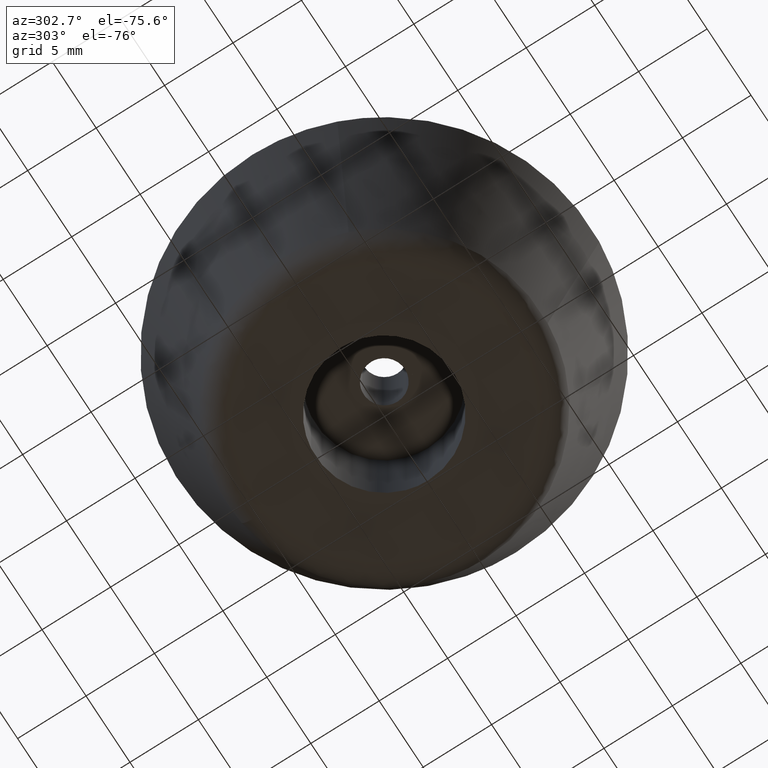
[diagram: clean part render]
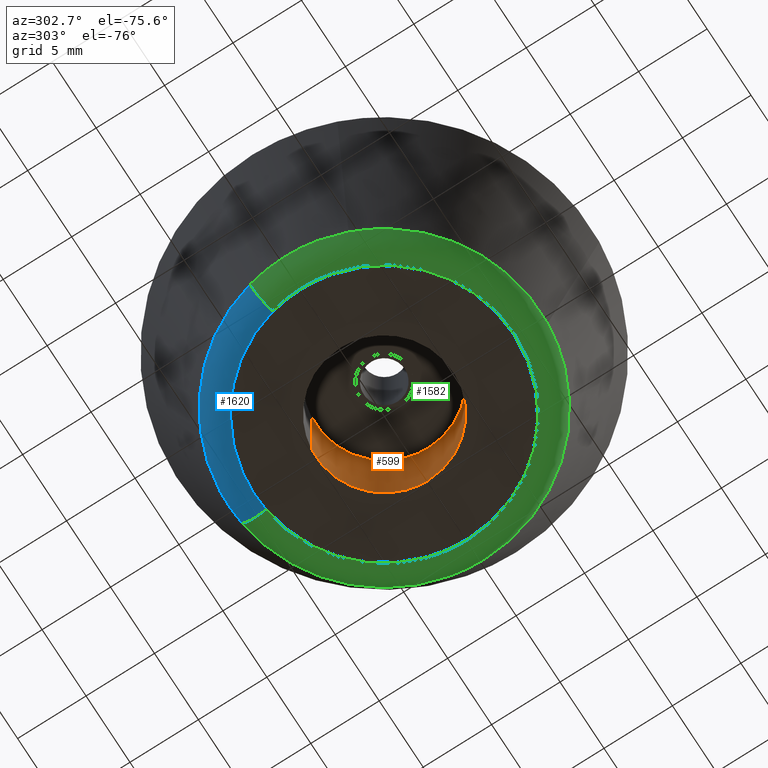
[diagram: same view with three faces highlighted in distinct colors, each labeled with its STEP entity id]
A machine part, auxiliary view with three faces highlighted in distinct colors.
Their STEP definitions:

[orange] entity #599 — the highlighted face is a freeform B-spline surface patch.
#497=CARTESIAN_POINT('',(-0.590171173283792,4.965047631818332,8.199999999999898));
#498=CARTESIAN_POINT('',(-0.448073643189888,4.981938077243028,8.199999999999898));
#499=CARTESIAN_POINT('',(-0.305242697674285,4.990673992109334,8.199999999999898));
#500=CARTESIAN_POINT('',(4.685431294435048,5.295916689783620,8.199999999999898));
#501=CARTESIAN_POINT('',(4.990673992109334,0.305242697674285,8.199999999999898));
#502=CARTESIAN_POINT('',(5.295916689783620,-4.685431294435048,8.199999999999898));
#503=CARTESIAN_POINT('',(0.305242697674285,-4.990673992109334,8.199999999999898));
#504=CARTESIAN_POINT('',(-0.590171173283792,4.965047631818332,-0.204999999999997));
#505=CARTESIAN_POINT('',(-0.448073643189888,4.981938077243028,-0.204999999999997));
#506=CARTESIAN_POINT('',(-0.305242697674285,4.990673992109334,-0.204999999999997));
#507=CARTESIAN_POINT('',(4.685431294435048,5.295916689783620,-0.204999999999997));
#508=CARTESIAN_POINT('',(4.990673992109334,0.305242697674285,-0.204999999999997));
#509=CARTESIAN_POINT('',(5.295916689783620,-4.685431294435048,-0.204999999999997));
#510=CARTESIAN_POINT('',(0.305242697674285,-4.990673992109334,-0.204999999999997));
#518=(BOUNDED_SURFACE()B_SPLINE_SURFACE(2,1,((#497,#504),(#498,#505),(#499,#506),(#500,#507),(#501,#508),(#502,#509),(#503,#510)),.UNSPECIFIED.,.F.,.F.,.U.)B_SPLINE_SURFACE_WITH_KNOTS((3,2,2,3),(2,2),(0.0,0.331370849898476,8.615642097360375,16.899913344822270),(0.0,8.404999999999896),.UNSPECIFIED.)GEOMETRIC_REPRESENTATION_ITEM()RATIONAL_B_SPLINE_SURFACE(((0.977505800795127,0.977505800795127),(0.988284271247462,0.988284271247462),(1.0,1.0),(0.707106781186548,0.707106781186548),(1.0,1.0),(0.707106781186548,0.707106781186548),(1.0,1.0)))REPRESENTATION_ITEM('')SURFACE());
#519=CARTESIAN_POINT('',(-0.590171173301907,4.965047631816178,5.820828E-016));
#520=VERTEX_POINT('',#519);
#521=CARTESIAN_POINT('',(5.0,0.0,0.0));
#522=VERTEX_POINT('',#521);
#523=CARTESIAN_POINT('',(-0.590171173301907,4.965047631816178,5.820828E-016));
#524=CARTESIAN_POINT('',(-0.296120598277857,5.0,0.0));
#525=CARTESIAN_POINT('',(0.0,5.0,0.0));
#526=CARTESIAN_POINT('',(5.000000000000001,5.000000000000001,0.0));
#527=CARTESIAN_POINT('',(5.0,0.0,0.0));
#535=(BOUNDED_CURVE()B_SPLINE_CURVE(2,(#523,#524,#525,#526,#527),.UNSPECIFIED.,.F.,.U.)B_SPLINE_CURVE_WITH_KNOTS((3,2,3),(0.229562473514411,0.250000000000000,0.500000000000000),.UNSPECIFIED.)CURVE()GEOMETRIC_REPRESENTATION_ITEM()RATIONAL_B_SPLINE_CURVE((0.956026754185469,0.976055948332203,1.0,0.707106781186548,1.0))REPRESENTATION_ITEM(''));
#536=EDGE_CURVE('',#520,#522,#535,.T.);
#537=ORIENTED_EDGE('',*,*,#536,.T.);
#538=CARTESIAN_POINT('',(0.305242697700494,-4.990673992107731,-3.469447E-016));
#539=VERTEX_POINT('',#538);
#540=CARTESIAN_POINT('',(5.0,0.0,0.0));
#541=CARTESIAN_POINT('',(4.999999999999999,-4.703530334478959,0.0));
#542=CARTESIAN_POINT('',(0.305242697700494,-4.990673992107731,-3.469447E-016));
#550=(BOUNDED_CURVE()B_SPLINE_CURVE(2,(#540,#541,#542),.UNSPECIFIED.,.F.,.U.)B_SPLINE_CURVE_WITH_KNOTS((3,3),(0.500000000000000,0.739332962240155),.UNSPECIFIED.)CURVE()GEOMETRIC_REPRESENTATION_ITEM()RATIONAL_B_SPLINE_CURVE((1.0,0.719603993285290,0.976072041669316))REPRESENTATION_ITEM(''));
#551=EDGE_CURVE('',#522,#539,#550,.T.);
#552=ORIENTED_EDGE('',*,*,#551,.T.);
#553=CARTESIAN_POINT('',(0.305242697700494,-4.990673992107731,7.999999999999900));
#554=VERTEX_POINT('',#553);
#555=CARTESIAN_POINT('',(0.305242697700494,-4.990673992107731,7.999999999999900));
#556=CARTESIAN_POINT('',(0.305242697700494,-4.990673992107731,-3.469447E-016));
#557=QUASI_UNIFORM_CURVE('',1,(#555,#556),.UNSPECIFIED.,.F.,.U.);
#558=EDGE_CURVE('',#554,#539,#557,.T.);
#559=ORIENTED_EDGE('',*,*,#558,.F.);
#560=CARTESIAN_POINT('',(5.0,0.0,7.999999999999900));
#561=VERTEX_POINT('',#560);
#562=CARTESIAN_POINT('',(5.0,0.0,7.999999999999900));
#563=CARTESIAN_POINT('',(4.999999999999999,-4.703530334478959,7.999999999999899));
#564=CARTESIAN_POINT('',(0.305242697700494,-4.990673992107731,7.999999999999900));
#572=(BOUNDED_CURVE()B_SPLINE_CURVE(2,(#562,#563,#564),.UNSPECIFIED.,.F.,.U.)B_SPLINE_CURVE_WITH_KNOTS((3,3),(0.500000000000000,0.739332962240155),.UNSPECIFIED.)CURVE()GEOMETRIC_REPRESENTATION_ITEM()RATIONAL_B_SPLINE_CURVE((1.0,0.719603993285290,0.976072041669316))REPRESENTATION_ITEM(''));
#573=EDGE_CURVE('',#561,#554,#572,.T.);
#574=ORIENTED_EDGE('',*,*,#573,.F.);
#575=CARTESIAN_POINT('',(-0.590161985997096,4.965048723849380,7.999999999999899));
#576=VERTEX_POINT('',#575);
#577=CARTESIAN_POINT('',(-0.590161985997096,4.965048723849380,7.999999999999899));
#578=CARTESIAN_POINT('',(-0.296115956054067,5.0,7.999999999999900));
#579=CARTESIAN_POINT('',(0.0,5.0,7.999999999999900));
#580=CARTESIAN_POINT('',(5.000000000000001,5.000000000000001,7.999999999999901));
#581=CARTESIAN_POINT('',(5.0,0.0,7.999999999999900));
#589=(BOUNDED_CURVE()B_SPLINE_CURVE(2,(#577,#578,#579,#580,#581),.UNSPECIFIED.,.F.,.U.)B_SPLINE_CURVE_WITH_KNOTS((3,2,3),(0.229562786238015,0.250000000000000,0.500000000000000),.UNSPECIFIED.)CURVE()GEOMETRIC_REPRESENTATION_ITEM()RATIONAL_B_SPLINE_CURVE((0.956027367137448,0.976056314710695,1.0,0.707106781186548,1.0))REPRESENTATION_ITEM(''));
#590=EDGE_CURVE('',#576,#561,#589,.T.);
#591=ORIENTED_EDGE('',*,*,#590,.F.);
#592=CARTESIAN_POINT('',(-0.590161985997096,4.965048723849380,7.999999999999899));
#593=CARTESIAN_POINT('',(-0.590171173301907,4.965047631816178,5.820828E-016));
#594=QUASI_UNIFORM_CURVE('',1,(#592,#593),.UNSPECIFIED.,.F.,.U.);
#595=EDGE_CURVE('',#576,#520,#594,.T.);
#596=ORIENTED_EDGE('',*,*,#595,.T.);
#597=EDGE_LOOP('',(#537,#552,#559,#574,#591,#596));
#598=FACE_OUTER_BOUND('',#597,.T.);
#599=ADVANCED_FACE('',(#598),#518,.F.);

[blue] entity #1620 — the highlighted face is a freeform B-spline surface patch.
#855=CARTESIAN_POINT('',(1.398603272956064,11.309763107930380,1.484675005030863));
#856=VERTEX_POINT('',#855);
#870=CARTESIAN_POINT('',(-11.072630677959060,2.695121990196576,1.484675005013568));
#871=VERTEX_POINT('',#870);
#872=CARTESIAN_POINT('',(-11.072630677959058,2.695121990196575,1.484675005013569));
#873=CARTESIAN_POINT('',(-8.954823839718012,11.395913000000000,1.484674999999897));
#874=CARTESIAN_POINT('',(0.0,11.395913000000000,1.484674999999896));
#875=CARTESIAN_POINT('',(0.701954927818329,11.395913000000004,1.484674999999896));
#876=CARTESIAN_POINT('',(1.398603272956064,11.309763107930380,1.484675005030863));
#884=(BOUNDED_CURVE()B_SPLINE_CURVE(2,(#872,#873,#874,#875,#876),.UNSPECIFIED.,.F.,.U.)B_SPLINE_CURVE_WITH_KNOTS((3,2,3),(0.040401677692741,0.250000000000000,0.271236031903497),.UNSPECIFIED.)CURVE()GEOMETRIC_REPRESENTATION_ITEM()RATIONAL_B_SPLINE_CURVE((0.920631806224459,0.754440290886110,1.0,0.975120441043839,0.954467626949581))REPRESENTATION_ITEM(''));
#885=EDGE_CURVE('',#871,#856,#884,.T.);
#1500=CARTESIAN_POINT('',(1.161434136675054,9.391902052839949,3.545680E-016));
#1501=VERTEX_POINT('',#1500);
#1517=CARTESIAN_POINT('',(1.398603272956064,11.309763107930376,1.484675005030863));
#1518=CARTESIAN_POINT('',(1.350013453387140,10.916843000138156,7.894668E-010));
#1519=CARTESIAN_POINT('',(1.161434136675054,9.391902052839949,3.545680E-016));
#1527=(BOUNDED_CURVE()B_SPLINE_CURVE(2,(#1517,#1518,#1519),.UNSPECIFIED.,.F.,.U.)B_SPLINE_CURVE_WITH_KNOTS((3,3),(-1.686134606863332,-0.303339817145263),.UNSPECIFIED.)CURVE()GEOMETRIC_REPRESENTATION_ITEM()RATIONAL_B_SPLINE_CURVE((0.858370364377691,0.681751507819132,0.861079767427219))REPRESENTATION_ITEM(''));
#1528=EDGE_CURVE('',#856,#1501,#1527,.T.);
#1535=CARTESIAN_POINT('',(-9.194981521801914,2.238094778029808,3.084375E-016));
#1536=VERTEX_POINT('',#1535);
#1537=CARTESIAN_POINT('',(-11.072630677959062,2.695121990196576,1.484675005013568));
#1538=CARTESIAN_POINT('',(-10.687948947775157,2.601488939443247,6.067662E-010));
#1539=CARTESIAN_POINT('',(-9.194981521801914,2.238094778029808,3.084375E-016));
#1547=(BOUNDED_CURVE()B_SPLINE_CURVE(2,(#1537,#1538,#1539),.UNSPECIFIED.,.F.,.U.)B_SPLINE_CURVE_WITH_KNOTS((3,3),(-1.686134606843051,-0.303339817010112),.UNSPECIFIED.)CURVE()GEOMETRIC_REPRESENTATION_ITEM()RATIONAL_B_SPLINE_CURVE((0.897045477047541,0.712468803595561,0.899876956194596))REPRESENTATION_ITEM(''));
#1548=EDGE_CURVE('',#871,#1536,#1547,.T.);
#1583=CARTESIAN_POINT('',(-11.099400183449898,2.701637793443051,1.602108768027597));
#1584=CARTESIAN_POINT('',(-8.693614149748445,12.585561540962241,1.602108768027596));
#1585=CARTESIAN_POINT('',(1.401984575833804,11.337105911494854,1.602108768027597));
#1586=CARTESIAN_POINT('',(-10.763511315822385,2.619881117930769,-0.100795717764828));
#1587=CARTESIAN_POINT('',(-8.430528923151822,12.204698616427503,-0.100795717764828));
#1588=CARTESIAN_POINT('',(1.359557867739233,10.994023618411738,-0.100795717764829));
#1589=CARTESIAN_POINT('',(-9.078216748610123,2.209673771532549,0.003613706161540));
#1590=CARTESIAN_POINT('',(-7.110520593525417,10.293750444478022,0.003613706161540));
#1591=CARTESIAN_POINT('',(1.146685374639005,9.272636634902352,0.003613706161540));
#1599=(BOUNDED_SURFACE()B_SPLINE_SURFACE(2,2,((#1583,#1586,#1589),(#1584,#1587,#1590),(#1585,#1588,#1591)),.UNSPECIFIED.,.F.,.F.,.U.)B_SPLINE_SURFACE_WITH_KNOTS((3,3),(3,3),(0.0,17.393754281439112),(0.0,2.989861379165938),.UNSPECIFIED.)GEOMETRIC_REPRESENTATION_ITEM()RATIONAL_B_SPLINE_SURFACE(((0.916412817856860,0.692960037778070,0.919527146809226),(0.669474605871578,0.506233805482072,0.671749742259146),(0.876902703939215,0.663083840610710,0.879882762081213)))REPRESENTATION_ITEM('')SURFACE());
#1600=CARTESIAN_POINT('',(-9.194981521801914,2.238094778029808,3.084375E-016));
#1601=CARTESIAN_POINT('',(-7.436303259014869,9.463443000000002,0.0));
#1602=CARTESIAN_POINT('',(0.0,9.463443000000000,0.0));
#1603=CARTESIAN_POINT('',(0.582920424967703,9.463443000000002,0.0));
#1604=CARTESIAN_POINT('',(1.161434136675053,9.391902052839949,3.545680E-016));
#1612=(BOUNDED_CURVE()B_SPLINE_CURVE(2,(#1600,#1601,#1602,#1603,#1604),.UNSPECIFIED.,.F.,.U.)B_SPLINE_CURVE_WITH_KNOTS((3,2,3),(0.040401677694351,0.250000000000000,0.271236031906231),.UNSPECIFIED.)CURVE()GEOMETRIC_REPRESENTATION_ITEM()RATIONAL_B_SPLINE_CURVE((0.920631806221906,0.754440290887996,1.0,0.975120441040636,0.954467626944263))REPRESENTATION_ITEM(''));
#1613=EDGE_CURVE('',#1536,#1501,#1612,.T.);
#1614=ORIENTED_EDGE('',*,*,#1613,.F.);
#1615=ORIENTED_EDGE('',*,*,#1548,.F.);
#1616=ORIENTED_EDGE('',*,*,#885,.T.);
#1617=ORIENTED_EDGE('',*,*,#1528,.T.);
#1618=EDGE_LOOP('',(#1614,#1615,#1616,#1617));
#1619=FACE_OUTER_BOUND('',#1618,.T.);
#1620=ADVANCED_FACE('',(#1619),#1599,.T.);

[green] entity #1582 — the highlighted face is a freeform B-spline surface patch.
#701=CARTESIAN_POINT('',(0.894102223881726,-11.360782142834809,1.484667856032542));
#702=VERTEX_POINT('',#701);
#703=CARTESIAN_POINT('',(-10.596654389991979,-4.192578432100836,1.484669252332252));
#704=VERTEX_POINT('',#703);
#705=CARTESIAN_POINT('',(0.894102223881726,-11.360782142834802,1.484667856032541));
#706=CARTESIAN_POINT('',(0.447741181087417,-11.395911136315501,1.484667893160605));
#707=CARTESIAN_POINT('',(-0.000000063427110,-11.395911173770280,1.484667932326329));
#708=CARTESIAN_POINT('',(-7.746647775045643,-11.395911821798508,1.484668609956705));
#709=CARTESIAN_POINT('',(-10.596654389991977,-4.192578432100836,1.484669252332251));
#717=(BOUNDED_CURVE()B_SPLINE_CURVE(2,(#705,#706,#707,#708,#709),.UNSPECIFIED.,.F.,.U.)B_SPLINE_CURVE_WITH_KNOTS((3,2,3),(0.736331461417026,0.750000000000000,0.937532616963233),.UNSPECIFIED.)CURVE()GEOMETRIC_REPRESENTATION_ITEM()RATIONAL_B_SPLINE_CURVE((0.969723691716541,0.983986310951828,1.0,0.780291872740513,0.890203266065528))REPRESENTATION_ITEM(''));
#718=EDGE_CURVE('',#702,#704,#717,.T.);
#778=CARTESIAN_POINT('',(-11.395913000000000,0.0,1.484674999999896));
#779=VERTEX_POINT('',#778);
#780=CARTESIAN_POINT('',(-10.596654389991977,-4.192578432100836,1.484669252332251));
#781=CARTESIAN_POINT('',(-11.395912287392441,-2.172472878666465,1.484672126166073));
#782=CARTESIAN_POINT('',(-11.395913000000000,0.0,1.484674999999896));
#790=(BOUNDED_CURVE()B_SPLINE_CURVE(2,(#780,#781,#782),.UNSPECIFIED.,.F.,.U.)B_SPLINE_CURVE_WITH_KNOTS((3,3),(0.937532616963233,1.0),.UNSPECIFIED.)CURVE()GEOMETRIC_REPRESENTATION_ITEM()RATIONAL_B_SPLINE_CURVE((0.890203266065528,0.926814908446034,1.0))REPRESENTATION_ITEM(''));
#791=EDGE_CURVE('',#704,#779,#790,.T.);
#840=CARTESIAN_POINT('',(11.395913000000000,0.0,1.484674999999896));
#841=VERTEX_POINT('',#840);
#842=CARTESIAN_POINT('',(11.395913000000000,0.0,1.484674999999896));
#843=CARTESIAN_POINT('',(11.395912925266126,-10.534282582340243,1.484671428016219));
#844=CARTESIAN_POINT('',(0.894102223881726,-11.360782142834802,1.484667856032541));
#852=(BOUNDED_CURVE()B_SPLINE_CURVE(2,(#842,#843,#844),.UNSPECIFIED.,.F.,.U.)B_SPLINE_CURVE_WITH_KNOTS((3,3),(0.500000000000000,0.736331461417026),.UNSPECIFIED.)CURVE()GEOMETRIC_REPRESENTATION_ITEM()RATIONAL_B_SPLINE_CURVE((1.0,0.723120470234720,0.969723691716541))REPRESENTATION_ITEM(''));
#853=EDGE_CURVE('',#841,#702,#852,.T.);
#855=CARTESIAN_POINT('',(1.398603272956064,11.309763107930380,1.484675005030863));
#856=VERTEX_POINT('',#855);
#857=CARTESIAN_POINT('',(1.398603272956064,11.309763107930378,1.484675005030862));
#858=CARTESIAN_POINT('',(11.395913000000002,10.073462245029408,1.484674999999897));
#859=CARTESIAN_POINT('',(11.395913000000000,0.0,1.484674999999896));
#867=(BOUNDED_CURVE()B_SPLINE_CURVE(2,(#857,#858,#859),.UNSPECIFIED.,.F.,.U.)B_SPLINE_CURVE_WITH_KNOTS((3,3),(0.271236031903497,0.500000000000000),.UNSPECIFIED.)CURVE()GEOMETRIC_REPRESENTATION_ITEM()RATIONAL_B_SPLINE_CURVE((0.954467626949581,0.731986340142709,1.0))REPRESENTATION_ITEM(''));
#868=EDGE_CURVE('',#856,#841,#867,.T.);
#870=CARTESIAN_POINT('',(-11.072630677959060,2.695121990196576,1.484675005013568));
#871=VERTEX_POINT('',#870);
#887=CARTESIAN_POINT('',(-11.395913000000000,0.0,1.484674999999896));
#888=CARTESIAN_POINT('',(-11.395912999999998,1.366949998661673,1.484674999999896));
#889=CARTESIAN_POINT('',(-11.072630677959058,2.695121990196575,1.484675005013569));
#897=(BOUNDED_CURVE()B_SPLINE_CURVE(2,(#887,#888,#889),.UNSPECIFIED.,.F.,.U.)B_SPLINE_CURVE_WITH_KNOTS((3,3),(0.0,0.040401677692741),.UNSPECIFIED.)CURVE()GEOMETRIC_REPRESENTATION_ITEM()RATIONAL_B_SPLINE_CURVE((1.0,0.952666490300438,0.920631806224459))REPRESENTATION_ITEM(''));
#898=EDGE_CURVE('',#779,#871,#897,.T.);
#1465=CARTESIAN_POINT('',(1.401985854615264,11.337105756965558,1.602108785672121));
#1466=CARTESIAN_POINT('',(2.058696463842211,11.255894643260786,1.602108785672122));
#1467=CARTESIAN_POINT('',(2.701637794290166,11.099400186930184,1.602108785672122));
#1468=CARTESIAN_POINT('',(13.801037981220352,8.397762392640020,1.602108785672123));
#1469=CARTESIAN_POINT('',(11.099400186930184,-2.701637794290166,1.602108785672122));
#1470=CARTESIAN_POINT('',(8.397762392640018,-13.801037981220352,1.602108785672123));
#1471=CARTESIAN_POINT('',(-2.701637794290167,-11.099400186930184,1.602108785672122));
#1472=CARTESIAN_POINT('',(-13.801037981220352,-8.397762392640018,1.602108785672123));
#1473=CARTESIAN_POINT('',(-11.099400186930184,2.701637794290167,1.602108785672122));
#1474=CARTESIAN_POINT('',(1.359559101251031,10.994023415420104,-0.100796043038038));
#1475=CARTESIAN_POINT('',(1.996396400802544,10.915269904179896,-0.100796043038038));
#1476=CARTESIAN_POINT('',(2.619881106089275,10.763511267172831,-0.100796043038038));
#1477=CARTESIAN_POINT('',(13.383392373262103,8.143630161083554,-0.100796043038038));
#1478=CARTESIAN_POINT('',(10.763511267172831,-2.619881106089275,-0.100796043038038));
#1479=CARTESIAN_POINT('',(8.143630161083554,-13.383392373262103,-0.100796043038038));
#1480=CARTESIAN_POINT('',(-2.619881106089276,-10.763511267172831,-0.100796043038038));
#1481=CARTESIAN_POINT('',(-13.383392373262103,-8.143630161083554,-0.100796043038038));
#1482=CARTESIAN_POINT('',(-10.763511267172831,2.619881106089275,-0.100796043038038));
#1483=CARTESIAN_POINT('',(1.146686373990706,9.272636131961193,0.003613728824665));
#1484=CARTESIAN_POINT('',(1.683810985324482,9.206213437898116,0.003613728824665));
#1485=CARTESIAN_POINT('',(2.209673682493024,9.078216382800418,0.003613728824665));
#1486=CARTESIAN_POINT('',(11.287890065293439,6.868542700307394,0.003613728824665));
#1487=CARTESIAN_POINT('',(9.078216382800418,-2.209673682493022,0.003613728824665));
#1488=CARTESIAN_POINT('',(6.868542700307391,-11.287890065293439,0.003613728824665));
#1489=CARTESIAN_POINT('',(-2.209673682493025,-9.078216382800418,0.003613728824665));
#1490=CARTESIAN_POINT('',(-11.287890065293439,-6.868542700307391,0.003613728824665));
#1491=CARTESIAN_POINT('',(-9.078216382800418,2.209673682493024,0.003613728824665));
#1499=(BOUNDED_SURFACE()B_SPLINE_SURFACE(2,2,((#1465,#1474,#1483),(#1466,#1475,#1484),(#1467,#1476,#1485),(#1468,#1477,#1486),(#1469,#1478,#1487),(#1470,#1479,#1488),(#1471,#1480,#1489),(#1472,#1481,#1490),(#1473,#1482,#1491)),.UNSPECIFIED.,.F.,.F.,.U.)B_SPLINE_SURFACE_WITH_KNOTS((3,2,2,2,3),(3,3),(0.0,1.514159754598448,20.441174737287131,39.368189719975803,58.295204702664492),(0.0,2.989861829440494),.UNSPECIFIED.)GEOMETRIC_REPRESENTATION_ITEM()RATIONAL_B_SPLINE_SURFACE(((0.876902741272369,0.663083834346954,0.879882859045736),(0.894939953326419,0.676722956642746,0.897981369820494),(0.916412820918742,0.692960004045383,0.919527212067069),(0.648001720037936,0.489996717951548,0.650203927138185),(0.916412820918742,0.692960004045383,0.919527212067069),(0.648001720037936,0.489996717951548,0.650203927138185),(0.916412820918742,0.692960004045383,0.919527212067069),(0.648001720037936,0.489996717951548,0.650203927138185),(0.916412820918742,0.692960004045383,0.919527212067069)))REPRESENTATION_ITEM('')SURFACE());
#1500=CARTESIAN_POINT('',(1.161434136675054,9.391902052839949,3.545680E-016));
#1501=VERTEX_POINT('',#1500);
#1502=CARTESIAN_POINT('',(9.463443000000000,0.0,0.0));
#1503=VERTEX_POINT('',#1502);
#1504=CARTESIAN_POINT('',(1.161434136675054,9.391902052839949,3.545680E-016));
#1505=CARTESIAN_POINT('',(9.463443000000000,8.365247766188748,0.0));
#1506=CARTESIAN_POINT('',(9.463443000000000,0.0,0.0));
#1514=(BOUNDED_CURVE()B_SPLINE_CURVE(2,(#1504,#1505,#1506),.UNSPECIFIED.,.F.,.U.)B_SPLINE_CURVE_WITH_KNOTS((3,3),(0.271236031906231,0.500000000000000),.UNSPECIFIED.)CURVE()GEOMETRIC_REPRESENTATION_ITEM()RATIONAL_B_SPLINE_CURVE((0.954467626944263,0.731986340145912,1.0))REPRESENTATION_ITEM(''));
#1515=EDGE_CURVE('',#1501,#1503,#1514,.T.);
#1516=ORIENTED_EDGE('',*,*,#1515,.F.);
#1517=CARTESIAN_POINT('',(1.398603272956064,11.309763107930376,1.484675005030863));
#1518=CARTESIAN_POINT('',(1.350013453387140,10.916843000138156,7.894668E-010));
#1519=CARTESIAN_POINT('',(1.161434136675054,9.391902052839949,3.545680E-016));
#1527=(BOUNDED_CURVE()B_SPLINE_CURVE(2,(#1517,#1518,#1519),.UNSPECIFIED.,.F.,.U.)B_SPLINE_CURVE_WITH_KNOTS((3,3),(-1.686134606863332,-0.303339817145263),.UNSPECIFIED.)CURVE()GEOMETRIC_REPRESENTATION_ITEM()RATIONAL_B_SPLINE_CURVE((0.858370364377691,0.681751507819132,0.861079767427219))REPRESENTATION_ITEM(''));
#1528=EDGE_CURVE('',#856,#1501,#1527,.T.);
#1529=ORIENTED_EDGE('',*,*,#1528,.F.);
#1530=ORIENTED_EDGE('',*,*,#868,.T.);
#1531=ORIENTED_EDGE('',*,*,#853,.T.);
#1532=ORIENTED_EDGE('',*,*,#718,.T.);
#1533=ORIENTED_EDGE('',*,*,#791,.T.);
#1534=ORIENTED_EDGE('',*,*,#898,.T.);
#1535=CARTESIAN_POINT('',(-9.194981521801914,2.238094778029808,3.084375E-016));
#1536=VERTEX_POINT('',#1535);
#1537=CARTESIAN_POINT('',(-11.072630677959062,2.695121990196576,1.484675005013568));
#1538=CARTESIAN_POINT('',(-10.687948947775157,2.601488939443247,6.067662E-010));
#1539=CARTESIAN_POINT('',(-9.194981521801914,2.238094778029808,3.084375E-016));
#1547=(BOUNDED_CURVE()B_SPLINE_CURVE(2,(#1537,#1538,#1539),.UNSPECIFIED.,.F.,.U.)B_SPLINE_CURVE_WITH_KNOTS((3,3),(-1.686134606843051,-0.303339817010112),.UNSPECIFIED.)CURVE()GEOMETRIC_REPRESENTATION_ITEM()RATIONAL_B_SPLINE_CURVE((0.897045477047541,0.712468803595561,0.899876956194596))REPRESENTATION_ITEM(''));
#1548=EDGE_CURVE('',#871,#1536,#1547,.T.);
#1549=ORIENTED_EDGE('',*,*,#1548,.T.);
#1550=CARTESIAN_POINT('',(-9.463443000000000,0.0,0.0));
#1551=VERTEX_POINT('',#1550);
#1552=CARTESIAN_POINT('',(-9.463443000000000,0.0,0.0));
#1553=CARTESIAN_POINT('',(-9.463443000000000,1.135148486718512,0.0));
#1554=CARTESIAN_POINT('',(-9.194981521801914,2.238094778029808,3.084375E-016));
#1562=(BOUNDED_CURVE()B_SPLINE_CURVE(2,(#1552,#1553,#1554),.UNSPECIFIED.,.F.,.U.)B_SPLINE_CURVE_WITH_KNOTS((3,3),(0.0,0.040401677694351),.UNSPECIFIED.)CURVE()GEOMETRIC_REPRESENTATION_ITEM()RATIONAL_B_SPLINE_CURVE((1.0,0.952666490298552,0.920631806221906))REPRESENTATION_ITEM(''));
#1563=EDGE_CURVE('',#1551,#1536,#1562,.T.);
#1564=ORIENTED_EDGE('',*,*,#1563,.F.);
#1565=CARTESIAN_POINT('',(9.463443000000000,0.0,0.0));
#1566=CARTESIAN_POINT('',(9.463443000000000,-9.463443000000000,0.0));
#1567=CARTESIAN_POINT('',(0.0,-9.463443000000000,0.0));
#1568=CARTESIAN_POINT('',(-9.463443000000000,-9.463443000000000,0.0));
#1569=CARTESIAN_POINT('',(-9.463443000000000,0.0,0.0));
#1577=(BOUNDED_CURVE()B_SPLINE_CURVE(2,(#1565,#1566,#1567,#1568,#1569),.UNSPECIFIED.,.F.,.U.)B_SPLINE_CURVE_WITH_KNOTS((3,2,3),(0.500000000000000,0.750000000000000,1.0),.UNSPECIFIED.)CURVE()GEOMETRIC_REPRESENTATION_ITEM()RATIONAL_B_SPLINE_CURVE((1.0,0.707106781186547,1.0,0.707106781186547,1.0))REPRESENTATION_ITEM(''));
#1578=EDGE_CURVE('',#1503,#1551,#1577,.T.);
#1579=ORIENTED_EDGE('',*,*,#1578,.F.);
#1580=EDGE_LOOP('',(#1516,#1529,#1530,#1531,#1532,#1533,#1534,#1549,#1564,#1579));
#1581=FACE_OUTER_BOUND('',#1580,.T.);
#1582=ADVANCED_FACE('',(#1581),#1499,.T.);